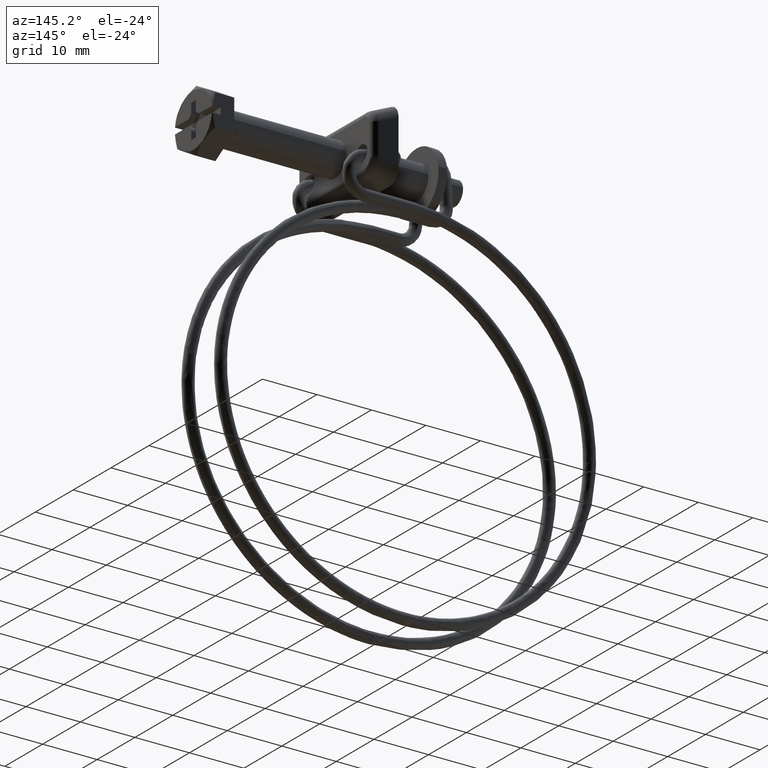
[diagram: clean part render]
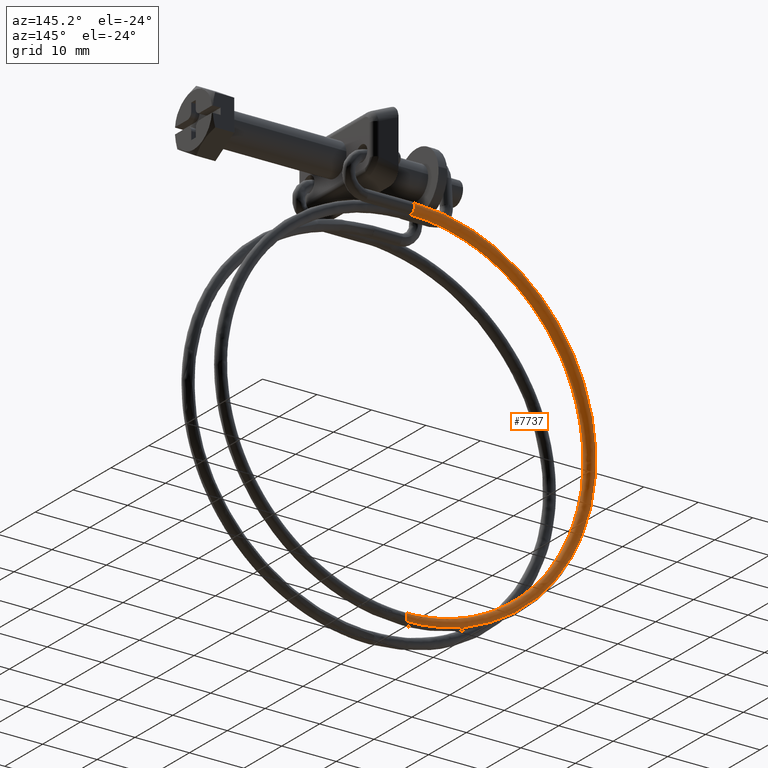
[diagram: same view with one face highlighted and labeled with its STEP entity id]
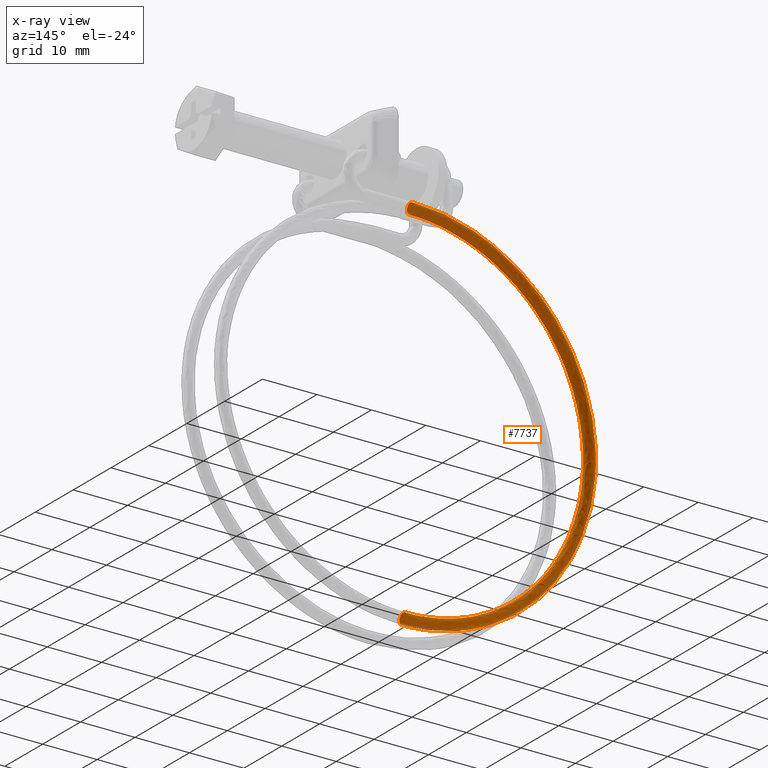
[diagram: x-ray of the same camera — body ghosted, the highlighted face saturated]
A machine part, auxiliary view. The second image highlights one B-rep face of the part: STEP entity #7737.
The next image is the same camera in x-ray: the body ghosted, the highlighted face saturated — about 0% of this face is hidden behind the body in this view.
In plain terms, the highlighted face is a freeform B-spline surface patch.
Its self-contained STEP definition (entity closure, byte-faithful):
#5726=CARTESIAN_POINT('',(-31.500000000001201,6.015277242104361,-6.894924390057616));
#5727=VERTEX_POINT('',#5726);
#5728=CARTESIAN_POINT('',(-31.500000000001201,6.369947953116897,-6.851799381403090));
#5729=VERTEX_POINT('',#5728);
#5730=CARTESIAN_POINT('',(-31.500000000001201,6.015277242104361,-6.894924390057616));
#5731=CARTESIAN_POINT('',(-31.500000000001201,6.129718348853620,-6.859667873983903));
#5732=CARTESIAN_POINT('',(-31.500000000001201,6.250341623666516,-6.844467170618180));
#5733=CARTESIAN_POINT('',(-31.500000000001201,6.369947953116897,-6.851799381403090));
#5734=B_SPLINE_CURVE_WITH_KNOTS('',3,(#5730,#5731,#5732,#5733),.UNSPECIFIED.,.F.,.U.,(4,4),(0.942811831421890,1.0),.UNSPECIFIED.);
#5735=EDGE_CURVE('',#5727,#5729,#5734,.T.);
#5788=CARTESIAN_POINT('',(-31.499999999456119,5.310041442645721,-7.851106266909685));
#5789=VERTEX_POINT('',#5788);
#5795=CARTESIAN_POINT('',(-31.500000000001201,6.250055857790140,-8.848202618596938));
#5796=VERTEX_POINT('',#5795);
#5797=CARTESIAN_POINT('',(-31.500000000001201,6.250055857790140,-8.848202618596938));
#5798=CARTESIAN_POINT('',(-31.499999999925350,5.988721868823734,-8.832508798743652));
#5799=CARTESIAN_POINT('',(-31.499999999820581,5.735455604355250,-8.709332346802100));
#5800=CARTESIAN_POINT('',(-31.499999999620510,5.401575395648069,-8.332804447886925));
#5801=CARTESIAN_POINT('',(-31.499999999526171,5.310880602710983,-8.092378664581801));
#5802=CARTESIAN_POINT('',(-31.499999999456119,5.310041442645721,-7.851106266909685));
#5803=B_SPLINE_CURVE_WITH_KNOTS('',3,(#5797,#5798,#5799,#5800,#5801,#5802),.UNSPECIFIED.,.F.,.U.,(4,2,4),(0.499999999999999,0.624999999999999,0.740274301614952),.UNSPECIFIED.);
#5804=EDGE_CURVE('',#5796,#5789,#5803,.T.);
#5806=CARTESIAN_POINT('',(-31.500000000001201,7.078674721900081,-7.210393451102995));
#5807=VERTEX_POINT('',#5806);
#5808=CARTESIAN_POINT('',(-31.500000000001201,7.078674721900081,-7.210393451102995));
#5809=CARTESIAN_POINT('',(-31.500000000001190,7.239101908064407,-7.403726215758000));
#5810=CARTESIAN_POINT('',(-31.500000000001201,7.323269578552670,-7.659072126360226));
#5811=CARTESIAN_POINT('',(-31.500000000001201,7.292509685471205,-8.171275620312171));
#5812=CARTESIAN_POINT('',(-31.500000000001201,7.169333207666697,-8.424534404153853));
#5813=CARTESIAN_POINT('',(-31.500000000001211,6.777564356626699,-8.771914376464917));
#5814=CARTESIAN_POINT('',(-31.500000000001201,6.511384430438944,-8.863896457176189));
#5815=CARTESIAN_POINT('',(-31.500000000001201,6.250055857790145,-8.848202618596938));
#5816=B_SPLINE_CURVE_WITH_KNOTS('',3,(#5808,#5809,#5810,#5811,#5812,#5813,#5814,#5815),.UNSPECIFIED.,.F.,.U.,(4,2,2,4),(0.130000243199439,0.250000000000000,0.374999999999999,0.499999999999999),.UNSPECIFIED.);
#5817=EDGE_CURVE('',#5807,#5796,#5816,.T.);
#5849=CARTESIAN_POINT('',(-31.499999999456119,5.310041442645721,-7.851106266909685));
#5850=CARTESIAN_POINT('',(-31.499999999463611,5.309969635276471,-7.830743751985228));
#5851=CARTESIAN_POINT('',(-31.499999999471289,5.310537401714973,-7.810375061139963));
#5852=CARTESIAN_POINT('',(-31.499999999579899,5.327431599549398,-7.528621678975285));
#5853=CARTESIAN_POINT('',(-31.499999999706979,5.450583846629549,-7.275255265982112));
#5854=CARTESIAN_POINT('',(-31.499999999888239,5.752699963185735,-7.007185871823710));
#5855=CARTESIAN_POINT('',(-31.499999999948741,5.879642676144169,-6.936955408940240));
#5856=CARTESIAN_POINT('',(-31.500000000001201,6.015277242104361,-6.894924390057616));
#5857=B_SPLINE_CURVE_WITH_KNOTS('',3,(#5849,#5850,#5851,#5852,#5853,#5854,#5855,#5856),.UNSPECIFIED.,.F.,.U.,(4,2,2,4),(0.740274301614952,0.749999999999999,0.874999999999999,0.942811831421890),.UNSPECIFIED.);
#5858=EDGE_CURVE('',#5789,#5727,#5857,.T.);
#6677=CARTESIAN_POINT('',(-31.500034371880741,4.300000213744417,-75.850000999962504));
#6678=VERTEX_POINT('',#6677);
#6694=CARTESIAN_POINT('',(-31.499999999998799,5.028950504939290,-75.534537187868480));
#6695=VERTEX_POINT('',#6694);
#6705=CARTESIAN_POINT('',(-31.499999999998799,4.300002000003272,-73.850001000000091));
#6706=VERTEX_POINT('',#6705);
#6707=CARTESIAN_POINT('',(-31.499999999998799,5.028950504939290,-75.534537187868480));
#6708=CARTESIAN_POINT('',(-31.499999999998799,5.200678716960485,-75.351169085010667));
#6709=CARTESIAN_POINT('',(-31.499999999998799,5.300002000003270,-75.101327902931871));
#6710=CARTESIAN_POINT('',(-31.499999999998799,5.300002000003270,-74.588201612201004));
#6711=CARTESIAN_POINT('',(-31.499999999998799,5.192228903613090,-74.328014341236795));
#6712=CARTESIAN_POINT('',(-31.499999999998799,4.821988658766550,-73.957774096390295));
#6713=CARTESIAN_POINT('',(-31.499999999998799,4.561801387802420,-73.850001000000091));
#6714=CARTESIAN_POINT('',(-31.499999999998799,4.300002000003272,-73.850001000000091));
#6715=B_SPLINE_CURVE_WITH_KNOTS('',3,(#6707,#6708,#6709,#6710,#6711,#6712,#6713,#6714),.UNSPECIFIED.,.F.,.U.,(4,2,2,4),(0.130000243199279,0.250000000000000,0.375000000000000,0.500000000000000),.UNSPECIFIED.);
#6716=EDGE_CURVE('',#6695,#6706,#6715,.T.);
#6718=CARTESIAN_POINT('',(-31.499999999848448,3.364945210156193,-75.203131635907283));
#6719=VERTEX_POINT('',#6718);
#6720=CARTESIAN_POINT('',(-31.499999999998799,4.300002000003272,-73.850001000000091));
#6721=CARTESIAN_POINT('',(-31.499999999985199,4.038161661962944,-73.850016503426275));
#6722=CARTESIAN_POINT('',(-31.499999999963570,3.777909289250105,-73.957814246805754));
#6723=CARTESIAN_POINT('',(-31.499999999916469,3.407527296422756,-74.328108156277750));
#6724=CARTESIAN_POINT('',(-31.499999999891301,3.299678426660810,-74.588324114420402));
#6725=CARTESIAN_POINT('',(-31.499999999862549,3.299591888975770,-74.970530271639589));
#6726=CARTESIAN_POINT('',(-31.499999999854701,3.322352722699565,-75.090572399678010));
#6727=CARTESIAN_POINT('',(-31.499999999848448,3.364945210156193,-75.203131635907283));
#6728=B_SPLINE_CURVE_WITH_KNOTS('',3,(#6720,#6721,#6722,#6723,#6724,#6725,#6726,#6727),.UNSPECIFIED.,.F.,.U.,(4,2,2,4),(0.500000000000000,0.625000000000000,0.750000000000000,0.807474354682750),.UNSPECIFIED.);
#6729=EDGE_CURVE('',#6706,#6719,#6728,.T.);
#6784=CARTESIAN_POINT('',(-31.499999999848448,3.364945210156193,-75.203131635907283));
#6785=CARTESIAN_POINT('',(-31.500003520484690,3.415054684177588,-75.335349654652276));
#6786=CARTESIAN_POINT('',(-31.500007543783731,3.492538758042029,-75.457238662657119));
#6787=CARTESIAN_POINT('',(-31.500019539731611,3.777819043397238,-75.742301835901955));
#6788=CARTESIAN_POINT('',(-31.500027863248310,4.038115470519495,-75.850033442891345));
#6789=CARTESIAN_POINT('',(-31.500034371880741,4.300000213744417,-75.850000999962504));
#6790=B_SPLINE_CURVE_WITH_KNOTS('',3,(#6784,#6785,#6786,#6787,#6788,#6789),.UNSPECIFIED.,.F.,.U.,(4,2,4),(0.807474354682751,0.875000000000000,1.0),.UNSPECIFIED.);
#6791=EDGE_CURVE('',#6719,#6678,#6790,.T.);
#7397=CARTESIAN_POINT('',(-31.500000000001201,7.078674234202620,-7.210392863373689));
#7398=CARTESIAN_POINT('',(-31.500000000001201,7.239101566904580,-7.403725180756085));
#7399=CARTESIAN_POINT('',(-31.500000000001201,7.323269609086691,-7.659071617920402));
#7400=CARTESIAN_POINT('',(-31.500000000001201,7.292509685471449,-8.171275620312040));
#7401=CARTESIAN_POINT('',(-31.500000000001201,7.169333207666990,-8.424534404153761));
#7402=CARTESIAN_POINT('',(-31.500000000001201,6.777564356627050,-8.771914376464881));
#7403=CARTESIAN_POINT('',(-31.500000000001201,6.511384430439320,-8.863896457176210));
#7404=CARTESIAN_POINT('',(-31.500000000001201,5.988727285141720,-8.832508780017820));
#7405=CARTESIAN_POINT('',(-31.500000000001201,5.735468501300010,-8.709332302213342));
#7406=CARTESIAN_POINT('',(-31.500000000001201,5.388088528988880,-8.317563451173401));
#7407=CARTESIAN_POINT('',(-31.500000000001201,5.296106448277560,-8.051383524985660));
#7408=CARTESIAN_POINT('',(-31.500000000001201,5.327494125435960,-7.528726379688069));
#7409=CARTESIAN_POINT('',(-31.500000000001201,5.450670603240420,-7.275467595846370));
#7410=CARTESIAN_POINT('',(-31.500000000001201,5.842439454280361,-6.928087623535240));
#7411=CARTESIAN_POINT('',(-31.500000000001201,6.108619380468101,-6.836105542823920));
#7412=CARTESIAN_POINT('',(-31.500000000001201,6.369947953116901,-6.851799381403114));
#7413=CARTESIAN_POINT('',(-35.973005246352727,7.078816173189922,-7.210426571157434));
#7414=CARTESIAN_POINT('',(-35.948321798327193,7.239243123532276,-7.403758610467009));
#7415=CARTESIAN_POINT('',(-35.915219101427638,7.323410648173153,-7.659104675804486));
#7416=CARTESIAN_POINT('',(-35.848033802962199,7.292649661923901,-8.171307926371231));
#7417=CARTESIAN_POINT('',(-35.814390001036557,7.169472645567200,-8.424566335172269));
#7418=CARTESIAN_POINT('',(-35.767367588014601,6.777703034603160,-8.771945785012161));
#7419=CARTESIAN_POINT('',(-35.754278533088112,6.511522895371450,-8.863927720642410));
#7420=CARTESIAN_POINT('',(-35.756335225868547,5.988865783593480,-8.832540066233690));
#7421=CARTESIAN_POINT('',(-35.771468308796543,5.735607245886210,-8.709363756234080));
#7422=CARTESIAN_POINT('',(-35.821399324642599,5.388228079441590,-8.317595460252651));
#7423=CARTESIAN_POINT('',(-35.855889790695102,5.296246549870240,-8.051415918777339));
#7424=CARTESIAN_POINT('',(-35.924446217700201,5.327635309353771,-7.528759541106350));
#7425=CARTESIAN_POINT('',(-35.958090019622901,5.450812311994089,-7.275501135425160));
#7426=CARTESIAN_POINT('',(-36.005112432626149,5.842581889729850,-6.928121693215950));
#7427=CARTESIAN_POINT('',(-36.018201487550087,6.108762016785970,-6.836139760379470));
#7428=CARTESIAN_POINT('',(-36.017173141154352,6.370090573671085,-6.851833587355236));
#7429=CARTESIAN_POINT('',(-40.442629881486248,7.051994873993948,-8.099707035284277));
#7430=CARTESIAN_POINT('',(-40.393282102555268,7.212569444127148,-8.288131438185035));
#7431=CARTESIAN_POINT('',(-40.327102346478888,7.296934944791059,-8.536895925974916));
#7432=CARTESIAN_POINT('',(-40.192783784050448,7.266575783289500,-9.035741191028851));
#7433=CARTESIAN_POINT('',(-40.125522237029600,7.143599991665441,-9.282310435302879));
#7434=CARTESIAN_POINT('',(-40.031513829494003,6.752111630586560,-9.620340742141810));
#7435=CARTESIAN_POINT('',(-40.005345857005899,6.486009780965270,-9.709720270646319));
#7436=CARTESIAN_POINT('',(-40.009457649670949,5.963340367443661,-9.678741534427839));
#7437=CARTESIAN_POINT('',(-40.039712095104392,5.709991314350030,-9.558574031588210));
#7438=CARTESIAN_POINT('',(-40.139535455591499,5.362313502185710,-9.176733175806190));
#7439=CARTESIAN_POINT('',(-40.208489675119353,5.270125684917701,-8.917411135006422));
#7440=CARTESIAN_POINT('',(-40.345549432699350,5.301104421143781,-8.408385354339140));
#7441=CARTESIAN_POINT('',(-40.412810979720248,5.424080212762131,-8.161816110065109));
#7442=CARTESIAN_POINT('',(-40.506819387271001,5.815568573842920,-7.823785803256600));
#7443=CARTESIAN_POINT('',(-40.532987359759147,6.081670423462300,-7.734406274721670));
#7444=CARTESIAN_POINT('',(-40.530931463434221,6.343005130225010,-7.749895642830910));
#7445=CARTESIAN_POINT('',(-48.705730897072797,6.949307687598625,-11.522613299489890));
#7446=CARTESIAN_POINT('',(-48.610793773250137,7.110448805516025,-11.692152776036110));
#7447=CARTESIAN_POINT('',(-48.483474655121590,7.195574097086788,-11.915590899651781));
#7448=CARTESIAN_POINT('',(-48.225067523692907,7.166757008712080,-12.363033726408361));
#7449=CARTESIAN_POINT('',(-48.095667215199001,7.044553427743220,-12.583862615367220));
#7450=CARTESIAN_POINT('',(-47.914810284613402,6.654144350390000,-12.885916797408481));
#7451=CARTESIAN_POINT('',(-47.864467349266498,6.388342927798450,-12.965282091345159));
#7452=CARTESIAN_POINT('',(-47.872377771540101,5.865626307949780,-12.935876899118460));
#7453=CARTESIAN_POINT('',(-47.930582418091802,5.611929912202299,-12.827287485201801));
#7454=CARTESIAN_POINT('',(-48.122626375141799,5.263106056491050,-12.483648081547100));
#7455=CARTESIAN_POINT('',(-48.255283111049501,5.170126595481261,-12.250714165742259));
#7456=CARTESIAN_POINT('',(-48.518963857405303,5.199531787700350,-11.794139852725340));
#7457=CARTESIAN_POINT('',(-48.648364165899302,5.321735368674919,-11.573310963766501));
#7458=CARTESIAN_POINT('',(-48.829221096469603,5.712144446026230,-11.271256781694801));
#7459=CARTESIAN_POINT('',(-48.879564031816500,5.977945868619690,-11.191891487788540));
#7460=CARTESIAN_POINT('',(-48.875608820672099,6.239304178542120,-11.206594083901891));
#7461=CARTESIAN_POINT('',(-52.495228591303217,6.873340451811479,-14.054854530071310));
#7462=CARTESIAN_POINT('',(-52.379388699860030,7.034900643055207,-14.210424895502500));
#7463=CARTESIAN_POINT('',(-52.224037113105332,7.120587949194864,-14.415129199989449));
#7464=CARTESIAN_POINT('',(-51.908735228554612,7.092911526683260,-14.824549830738620));
#7465=CARTESIAN_POINT('',(-51.750844225705087,6.971279147107130,-15.026338672842650));
#7466=CARTESIAN_POINT('',(-51.530167146343800,6.581668411992510,-15.301781446641851));
#7467=CARTESIAN_POINT('',(-51.468739962449099,6.316089214183140,-15.373739247817401));
#7468=CARTESIAN_POINT('',(-51.478392060790299,5.793337675994160,-15.345498000349000));
#7469=CARTESIAN_POINT('',(-51.549411907077904,5.539384352141160,-15.245472856607300));
#7470=CARTESIAN_POINT('',(-51.783739114828087,5.189712772203950,-14.930090927613540));
#7471=CARTESIAN_POINT('',(-51.945603528546002,5.096147735212950,-14.716676211555100));
#7472=CARTESIAN_POINT('',(-52.267340145434403,5.124388982675680,-14.298900057729400));
#7473=CARTESIAN_POINT('',(-52.425231148314403,5.246021362248000,-14.097111215610200));
#7474=CARTESIAN_POINT('',(-52.645908227645300,5.635632097366431,-13.821668441826199));
#7475=CARTESIAN_POINT('',(-52.707335411570398,5.901211295173890,-13.749710640635399));
#7476=CARTESIAN_POINT('',(-52.702509362399802,6.162587064268379,-13.763831264369610));
#7477=CARTESIAN_POINT('',(-58.819111408478960,6.683614215919462,-20.379062487825969));
#7478=CARTESIAN_POINT('',(-58.668397587253779,6.846220678830965,-20.499757130468101));
#7479=CARTESIAN_POINT('',(-58.466276962209832,6.933311128238903,-20.657689991987191));
#7480=CARTESIAN_POINT('',(-58.056052545948504,6.908482528048340,-20.972183210593251));
#7481=CARTESIAN_POINT('',(-57.850628006234103,6.788276227874250,-21.126436071969749));
#7482=CARTESIAN_POINT('',(-57.563515462691200,6.400658659124670,-21.335439965797949));
#7483=CARTESIAN_POINT('',(-57.483595449798003,6.135634274696789,-21.388903987230648));
#7484=CARTESIAN_POINT('',(-57.496153339925598,5.612795558278510,-21.363568680921350));
#7485=CARTESIAN_POINT('',(-57.588553913501201,5.358200779638050,-21.284925363732651));
#7486=CARTESIAN_POINT('',(-57.893425995568002,5.006412744688739,-21.040091936121300));
#7487=CARTESIAN_POINT('',(-58.104020152777203,4.911385740251650,-20.875409468955450));
#7488=CARTESIAN_POINT('',(-58.522616495901097,4.936721046566650,-20.554498021398249));
#7489=CARTESIAN_POINT('',(-58.728041035585100,5.056927346744540,-20.400245160036999));
#7490=CARTESIAN_POINT('',(-59.015153579158401,5.444544915490320,-20.191241266193551));
#7491=CARTESIAN_POINT('',(-59.095073592021201,5.709569299920100,-20.137777244776100));
#7492=CARTESIAN_POINT('',(-59.088794646957354,5.970988658129240,-20.150444897930750));
#7493=CARTESIAN_POINT('',(-61.351014895100157,6.569929865700559,-24.168540884870570));
#7494=CARTESIAN_POINT('',(-61.186343254168357,6.733163105050684,-24.268342979222648));
#7495=CARTESIAN_POINT('',(-60.965503952741109,6.821094117354305,-24.398257077193211));
#7496=CARTESIAN_POINT('',(-60.517288074277303,6.797971525261590,-24.655883358456801));
#7497=CARTESIAN_POINT('',(-60.292838878030402,6.678619528030301,-24.781659454522948));
#7498=CARTESIAN_POINT('',(-59.979136436591503,6.292195979689670,-24.950862667596400));
#7499=CARTESIAN_POINT('',(-59.891814918539687,6.027503960140490,-24.993247859532001));
#7500=CARTESIAN_POINT('',(-59.905535812582897,5.504613018982990,-24.969653377797101));
#7501=CARTESIAN_POINT('',(-60.006493733661401,5.249633972318660,-24.903818995010202));
#7502=CARTESIAN_POINT('',(-60.339600449555498,4.896578060032070,-24.701248145869450));
#7503=CARTESIAN_POINT('',(-60.569698028889803,4.800675253663500,-24.565759076927950));
#7504=CARTESIAN_POINT('',(-61.027061170179401,4.824269735392660,-24.302875116454850));
#7505=CARTESIAN_POINT('',(-61.251510366426203,4.943621732622050,-24.177099020396302));
#7506=CARTESIAN_POINT('',(-61.565212807895598,5.330045280964580,-24.007895807315300));
#7507=CARTESIAN_POINT('',(-61.652534325977797,5.594737300509960,-23.965510615379699));
#7508=CARTESIAN_POINT('',(-61.645673878956252,5.856182771088704,-23.977307856247130));
#7509=CARTESIAN_POINT('',(-64.773315190730528,6.322053691483692,-32.431080148747832));
#7510=CARTESIAN_POINT('',(-64.589779625259595,6.486653239180921,-32.485338630907762));
#7511=CARTESIAN_POINT('',(-64.343642124934874,6.576416592366566,-32.554174698441599));
#7512=CARTESIAN_POINT('',(-63.844080972463900,6.557012922918890,-32.687836889509057));
#7513=CARTESIAN_POINT('',(-63.593920046599003,6.439523218485470,-32.751536558254053));
#7514=CARTESIAN_POINT('',(-63.244281489101013,6.055702512143471,-32.833978369947651));
#7515=CARTESIAN_POINT('',(-63.146956873232412,5.791735013944940,-32.852212850001862));
#7516=CARTESIAN_POINT('',(-63.162249561335798,5.268730228219270,-32.832413187307750));
#7517=CARTESIAN_POINT('',(-63.274772695538992,5.012913516671880,-32.794500967558101));
#7518=CARTESIAN_POINT('',(-63.646038379946503,4.657093761854871,-32.684058204352802));
#7519=CARTESIAN_POINT('',(-63.902494738221797,4.559281797105490,-32.612207748947199));
#7520=CARTESIAN_POINT('',(-64.412251016253407,4.579081459805300,-32.475817758062000));
#7521=CARTESIAN_POINT('',(-64.662411942118396,4.696571164240621,-32.412118089309452));
#7522=CARTESIAN_POINT('',(-65.012050499585797,5.080391870580720,-32.329676277623449));
#7523=CARTESIAN_POINT('',(-65.109375115424115,5.344359368783050,-32.311441797569252));
#7524=CARTESIAN_POINT('',(-65.101728771372407,5.605861761645885,-32.321341628916301));
#7525=CARTESIAN_POINT('',(-65.662370306520003,6.187959255794595,-36.900894738474449));
#7526=CARTESIAN_POINT('',(-65.473935585598312,6.353297804149396,-36.930519864944479));
#7527=CARTESIAN_POINT('',(-65.221227882549599,6.444052222880281,-36.966320413828583));
#7528=CARTESIAN_POINT('',(-64.708331833770998,6.426660022002380,-37.032933651622002));
#7529=CARTESIAN_POINT('',(-64.451493306990699,6.310177583321621,-37.063057794829753));
#7530=CARTESIAN_POINT('',(-64.092521770181008,5.927764686545860,-37.098572620300452));
#7531=CARTESIAN_POINT('',(-63.992599246824803,5.664189063101530,-37.103744608226513));
#7532=CARTESIAN_POINT('',(-64.008300146042899,5.141122701811311,-37.085997464496351));
#7533=CARTESIAN_POINT('',(-64.123826885106297,4.884852919109321,-37.063187616756650));
#7534=CARTESIAN_POINT('',(-64.505002846531596,4.527538273723740,-37.002574539861563));
#7535=CARTESIAN_POINT('',(-64.768304851087990,4.428693694845215,-36.965144555930500));
#7536=CARTESIAN_POINT('',(-65.291668166168208,4.446440838598180,-36.897171864304553));
#7537=CARTESIAN_POINT('',(-65.548506692948493,4.562923277282740,-36.867047721096803));
#7538=CARTESIAN_POINT('',(-65.907478229758183,4.945336174058490,-36.831532895610849));
#7539=CARTESIAN_POINT('',(-66.007400753114396,5.208911797499020,-36.826360907684801));
#7540=CARTESIAN_POINT('',(-65.999550303505345,5.470444978144135,-36.835234479565102));
#7541=CARTESIAN_POINT('',(-65.662370306580911,5.919665025844651,-45.844035870206532));
#7542=CARTESIAN_POINT('',(-65.473935585659206,6.086482141674736,-45.824375413513302));
#7543=CARTESIAN_POINT('',(-65.221227882610492,6.179219450759152,-45.794079616381467));
#7544=CARTESIAN_POINT('',(-64.708331833831807,6.165851728021820,-45.726543580893413));
#7545=CARTESIAN_POINT('',(-64.451493307051493,6.051384592507930,-45.689490950563197));
#7546=CARTESIAN_POINT('',(-64.092521770241902,5.671788393397220,-45.631115852557102));
#7547=CARTESIAN_POINT('',(-63.992599246885703,5.408996819689680,-45.610152848952197));
#7548=CARTESIAN_POINT('',(-64.008300146103707,4.885807260084010,-45.596512315523903));
#7549=CARTESIAN_POINT('',(-64.123826885167105,4.628630987980160,-45.603918781849302));
#7550=CARTESIAN_POINT('',(-64.505002846592404,4.268325416208070,-45.643003252550997));
#7551=CARTESIAN_POINT('',(-64.768304851148898,4.167414817985089,-45.674440581258501));
#7552=CARTESIAN_POINT('',(-65.291668166229115,4.181055351390530,-45.743354903185093));
#7553=CARTESIAN_POINT('',(-65.548506693009401,4.295522486900615,-45.780407533515302));
#7554=CARTESIAN_POINT('',(-65.907478229819105,4.675118686011330,-45.838782631536603));
#7555=CARTESIAN_POINT('',(-66.007400753175290,4.937910259722670,-45.859745635141500));
#7556=CARTESIAN_POINT('',(-65.999550303566252,5.199505039525509,-45.866565901840453));
#7557=CARTESIAN_POINT('',(-64.773315190714143,5.785570590153837,-50.313850459972343));
#7558=CARTESIAN_POINT('',(-64.589779625218597,5.953126706642338,-50.269556647580657));
#7559=CARTESIAN_POINT('',(-64.343642124922368,6.046855081271930,-50.206225331819972));
#7560=CARTESIAN_POINT('',(-63.844080972466507,6.035498827100650,-50.071640343057403));
#7561=CARTESIAN_POINT('',(-63.593920046571213,5.922038957343240,-50.001012187182099));
#7562=CARTESIAN_POINT('',(-63.244281489103798,5.543850567793070,-49.895710102960400));
#7563=CARTESIAN_POINT('',(-63.146956873235197,5.281450868843540,-49.861684607219694));
#7564=CARTESIAN_POINT('',(-63.162249561338612,4.758199733673310,-49.850096592770598));
#7565=CARTESIAN_POINT('',(-63.274772695541799,4.500570390414860,-49.872605431098499));
#7566=CARTESIAN_POINT('',(-63.646038379918693,4.138769928076100,-49.961519588125903));
#7567=CARTESIAN_POINT('',(-63.902494738224313,4.036826715723970,-50.027377388277699));
#7568=CARTESIAN_POINT('',(-64.412251016210107,4.048414730184450,-50.164709009463998));
#7569=CARTESIAN_POINT('',(-64.662411942105393,4.161874599938065,-50.235337165354402));
#7570=CARTESIAN_POINT('',(-65.012050499572794,4.540062989488229,-50.340639249576100));
#7571=CARTESIAN_POINT('',(-65.109375115410899,4.802462688439670,-50.374664745301700));
#7572=CARTESIAN_POINT('',(-65.101728771374468,5.064088256023831,-50.380458752526252));
#7573=CARTESIAN_POINT('',(-61.351014895114623,5.537694415940402,-58.576389723770880));
#7574=CARTESIAN_POINT('',(-61.186343254207458,5.706616840774321,-58.486552299204227));
#7575=CARTESIAN_POINT('',(-60.965503952751803,5.802177556286074,-58.362142952965129));
#7576=CARTESIAN_POINT('',(-60.517288074272912,5.794540224767260,-58.103593874007302));
#7577=CARTESIAN_POINT('',(-60.292838878056401,5.682942647800100,-57.970889290826499));
#7578=CARTESIAN_POINT('',(-59.979136436586899,5.307357100259950,-57.778825805210403));
#7579=CARTESIAN_POINT('',(-59.891814918535097,5.045681922653470,-57.720649597603597));
#7580=CARTESIAN_POINT('',(-59.905535812578201,4.522316942915060,-57.712856402164803));
#7581=CARTESIAN_POINT('',(-60.006493733656797,4.263849934773559,-57.763287403545000));
#7582=CARTESIAN_POINT('',(-60.339600449581503,3.899285629900585,-57.944329646476803));
#7583=CARTESIAN_POINT('',(-60.569698028885398,3.795433259167660,-58.073826060224903));
#7584=CARTESIAN_POINT('',(-61.027061170220897,3.803226454595015,-58.337651650998197));
#7585=CARTESIAN_POINT('',(-61.251510366437387,3.914824031565990,-58.470356234163802));
#7586=CARTESIAN_POINT('',(-61.565212807906903,4.290409579106130,-58.662419719779912));
#7587=CARTESIAN_POINT('',(-61.652534325989102,4.552084756710720,-58.720595927401902));
#7588=CARTESIAN_POINT('',(-61.645673878952287,4.813767246580874,-58.724492525121299));
#7589=CARTESIAN_POINT('',(-58.819111408463492,5.424010065719992,-62.365868120890909));
#7590=CARTESIAN_POINT('',(-58.668397587245188,5.593559266992816,-62.255138148018737));
#7591=CARTESIAN_POINT('',(-58.466276962201121,5.689960545403700,-62.102710038252141));
#7592=CARTESIAN_POINT('',(-58.056052545925091,5.684029221979040,-61.787294021965899));
#7593=CARTESIAN_POINT('',(-57.850628006210897,5.573285947956579,-61.626112673451587));
#7594=CARTESIAN_POINT('',(-57.563515462653001,5.198894420817791,-61.394248507087802));
#7595=CARTESIAN_POINT('',(-57.483595449790293,4.937551608091910,-61.324993469991398));
#7596=CARTESIAN_POINT('',(-57.496153339933102,4.414134403616185,-61.318941099142300));
#7597=CARTESIAN_POINT('',(-57.588553913478300,4.155283127452710,-61.382181034901613));
#7598=CARTESIAN_POINT('',(-57.893425995560001,3.789450945242440,-61.605485856350199));
#7599=CARTESIAN_POINT('',(-58.104020152769003,3.684722772578025,-61.764175668246899));
#7600=CARTESIAN_POINT('',(-58.522616495907798,3.690775143419510,-62.086028746120398));
#7601=CARTESIAN_POINT('',(-58.728041035591602,3.801518417440070,-62.247210094634703));
#7602=CARTESIAN_POINT('',(-59.015153579149498,4.175909944576955,-62.479074260968098));
#7603=CARTESIAN_POINT('',(-59.095073592012199,4.437252757302839,-62.548329298094899));
#7604=CARTESIAN_POINT('',(-59.088794646948401,4.698961359540699,-62.551355483504238));
#7605=CARTESIAN_POINT('',(-52.495228591315367,5.234283829827603,-68.690076078572261));
#7606=CARTESIAN_POINT('',(-52.379388699865331,5.404879302769316,-68.544470382924757));
#7607=CARTESIAN_POINT('',(-52.224037113110832,5.502683724441438,-68.345270830189961));
#7608=CARTESIAN_POINT('',(-51.908735228574599,5.499600223337811,-67.934927401731500));
#7609=CARTESIAN_POINT('',(-51.750844225724897,5.390283028721180,-67.726210072520502));
#7610=CARTESIAN_POINT('',(-51.530167146378602,5.017884667951230,-67.427907026186091));
#7611=CARTESIAN_POINT('',(-51.468739962453391,4.757096668610629,-67.340158209316499));
#7612=CARTESIAN_POINT('',(-51.478392060779498,4.233592285901811,-67.337011779626508));
#7613=CARTESIAN_POINT('',(-51.549411907097507,3.974099554947074,-67.421633541969086));
#7614=CARTESIAN_POINT('',(-51.783739114832798,3.606150917728525,-67.715486864738708));
#7615=CARTESIAN_POINT('',(-51.945603528550798,3.499960777618035,-67.922908925619097));
#7616=CARTESIAN_POINT('',(-52.267340145424399,3.503107207315615,-68.341626709729908));
#7617=CARTESIAN_POINT('',(-52.425231148304597,3.612424401934145,-68.550344038940906));
#7618=CARTESIAN_POINT('',(-52.645908227650906,3.984822762705996,-68.848647085305686));
#7619=CARTESIAN_POINT('',(-52.707335411576103,4.245610762046600,-68.936395902144895));
#7620=CARTESIAN_POINT('',(-52.702509362405451,4.507362953401010,-68.937969117005096));
#7621=CARTESIAN_POINT('',(-48.705730897092522,5.158316594041912,-71.222317309206503));
#7622=CARTESIAN_POINT('',(-48.610793773263147,5.329331140311499,-71.062742502448316));
#7623=CARTESIAN_POINT('',(-48.483474655134579,5.427697576550784,-70.844809130556854));
#7624=CARTESIAN_POINT('',(-48.225067523705903,5.425754741310260,-70.396443506105598));
#7625=CARTESIAN_POINT('',(-48.095667215211897,5.317008748090180,-70.168686130024298));
#7626=CARTESIAN_POINT('',(-47.914810284626398,4.945408729553120,-69.843771675447698));
#7627=CARTESIAN_POINT('',(-47.864467349279487,4.684842954992811,-69.748615365801697));
#7628=CARTESIAN_POINT('',(-47.872377771553097,4.161303653943675,-69.746632880870010));
#7629=CARTESIAN_POINT('',(-47.930582418119997,3.901553994886265,-69.839818913402809));
#7630=CARTESIAN_POINT('',(-48.122626375170000,3.532757633438895,-70.161929710864101));
#7631=CARTESIAN_POINT('',(-48.255283111062496,3.425981917345285,-70.388870971475697));
#7632=CARTESIAN_POINT('',(-48.518963857418299,3.427964402283650,-70.846386914793399));
#7633=CARTESIAN_POINT('',(-48.648364165912312,3.536710395505630,-71.074144290874600));
#7634=CARTESIAN_POINT('',(-48.829221096497797,3.908310414040785,-71.399058745451299));
#7635=CARTESIAN_POINT('',(-48.879564031844701,4.168876188602050,-71.494215055036406));
#7636=CARTESIAN_POINT('',(-48.875608820700300,4.430645839127570,-71.495206297502250));
#7637=CARTESIAN_POINT('',(-40.442629881462061,5.055629407644091,-74.645223573378388));
#7638=CARTESIAN_POINT('',(-40.393282102537817,5.227210501693670,-74.466763840243260));
#7639=CARTESIAN_POINT('',(-40.327102346461402,5.326336728850323,-74.223504104233740));
#7640=CARTESIAN_POINT('',(-40.192783784032997,5.325935966736640,-73.723736041485097));
#7641=CARTESIAN_POINT('',(-40.125522237012099,5.217962184160350,-73.470238310088604));
#7642=CARTESIAN_POINT('',(-40.031513829476552,4.847441449356560,-73.109347730714305));
#7643=CARTESIAN_POINT('',(-40.005345856988399,4.587176101825980,-73.004177186561392));
#7644=CARTESIAN_POINT('',(-40.009457649653498,4.063589594453600,-73.003768245621501));
#7645=CARTESIAN_POINT('',(-40.039712095071749,3.803492592740445,-73.108532367016409));
#7646=CARTESIAN_POINT('',(-40.139535455558850,3.433550187748045,-73.468844616604997));
#7647=CARTESIAN_POINT('',(-40.208489675101852,3.325982827916455,-73.722174002150695));
#7648=CARTESIAN_POINT('',(-40.345549432681899,3.326391768849730,-74.232141413118711));
#7649=CARTESIAN_POINT('',(-40.412810979702748,3.434365551424120,-74.485639144515204));
#7650=CARTESIAN_POINT('',(-40.506819387238352,3.804886286229805,-74.846529723889503));
#7651=CARTESIAN_POINT('',(-40.532987359726448,4.065151633759434,-74.951700268103295));
#7652=CARTESIAN_POINT('',(-40.530931463401522,4.326944887444677,-74.951904738573248));
#7653=CARTESIAN_POINT('',(-35.973005278200759,5.028950991145331,-75.534537766680472));
#7654=CARTESIAN_POINT('',(-35.948321829925767,5.200679317026462,-75.351170124111590));
#7655=CARTESIAN_POINT('',(-35.915219132696052,5.300002995203425,-75.101328441614243));
#7656=CARTESIAN_POINT('',(-35.848033833557601,5.300002980163070,-74.588201641527704));
#7657=CARTESIAN_POINT('',(-35.814390031293300,5.192229876287700,-74.328014367400783));
#7658=CARTESIAN_POINT('',(-35.767367617793752,4.821989621078060,-73.957774111695699));
#7659=CARTESIAN_POINT('',(-35.754278562730399,4.561802347297800,-73.850001007699390));
#7660=CARTESIAN_POINT('',(-35.756335255516902,4.038203572391800,-73.850000992329399));
#7661=CARTESIAN_POINT('',(-35.771468338599448,3.778016304929900,-73.957774081107900));
#7662=CARTESIAN_POINT('',(-35.821399354932147,3.407776071425950,-74.328014315082001));
#7663=CARTESIAN_POINT('',(-35.855889821314612,3.300002982805649,-74.588201582878213));
#7664=CARTESIAN_POINT('',(-35.924446249006913,3.300002998153795,-75.111800358476700));
#7665=CARTESIAN_POINT('',(-35.958090051271142,3.407776102028100,-75.371987632608892));
#7666=CARTESIAN_POINT('',(-36.005112464770697,3.778016357238480,-75.742227888327719));
#7667=CARTESIAN_POINT('',(-36.018201519834101,4.038203631018700,-75.850000992329399));
#7668=CARTESIAN_POINT('',(-36.017173173435133,4.300003018471751,-75.850001000014402));
#7669=CARTESIAN_POINT('',(-31.499999999998799,5.028949982887156,-75.534537745304903));
#7670=CARTESIAN_POINT('',(-31.499999999998799,5.200678314370079,-75.351170097699310));
#7671=CARTESIAN_POINT('',(-31.499999999998799,5.300002000003270,-75.101328412287245));
#7672=CARTESIAN_POINT('',(-31.499999999998799,5.300002000003270,-74.588201612201004));
#7673=CARTESIAN_POINT('',(-31.499999999998799,5.192228903613090,-74.328014341236795));
#7674=CARTESIAN_POINT('',(-31.499999999998799,4.821988658766550,-73.957774096390295));
#7675=CARTESIAN_POINT('',(-31.499999999998799,4.561801387802420,-73.850001000000091));
#7676=CARTESIAN_POINT('',(-31.499999999998799,4.038202612204125,-73.850001000000091));
#7677=CARTESIAN_POINT('',(-31.499999999998799,3.778015341239990,-73.957774096390295));
#7678=CARTESIAN_POINT('',(-31.499999999998799,3.407775096393460,-74.328014341236795));
#7679=CARTESIAN_POINT('',(-31.499999999998799,3.300002000003275,-74.588201612201004));
#7680=CARTESIAN_POINT('',(-31.499999999998799,3.300002000003275,-75.111800387799207));
#7681=CARTESIAN_POINT('',(-31.499999999998799,3.407775096393460,-75.371987658763388));
#7682=CARTESIAN_POINT('',(-31.499999999998799,3.778015341239990,-75.742227903609901));
#7683=CARTESIAN_POINT('',(-31.499999999998799,4.038202612204125,-75.850001000000091));
#7684=CARTESIAN_POINT('',(-31.499999999998799,4.300002000003272,-75.850001000000091));
#7685=B_SPLINE_SURFACE_WITH_KNOTS('',3,3,((#7397,#7413,#7429,#7445,#7461,#7477,#7493,#7509,#7525,#7541,#7557,#7573,#7589,#7605,#7621,#7637,#7653,#7669),(#7398,#7414,#7430,#7446,#7462,#7478,#7494,#7510,#7526,#7542,#7558,#7574,#7590,#7606,#7622,#7638,#7654,#7670),(#7399,#7415,#7431,#7447,#7463,#7479,#7495,#7511,#7527,#7543,#7559,#7575,#7591,#7607,#7623,#7639,#7655,#7671),(#7400,#7416,#7432,#7448,#7464,#7480,#7496,#7512,#7528,#7544,#7560,#7576,#7592,#7608,#7624,#7640,#7656,#7672),(#7401,#7417,#7433,#7449,#7465,#7481,#7497,#7513,#7529,#7545,#7561,#7577,#7593,#7609,#7625,#7641,#7657,#7673),(#7402,#7418,#7434,#7450,#7466,#7482,#7498,#7514,#7530,#7546,#7562,#7578,#7594,#7610,#7626,#7642,#7658,#7674),(#7403,#7419,#7435,#7451,#7467,#7483,#7499,#7515,#7531,#7547,#7563,#7579,#7595,#7611,#7627,#7643,#7659,#7675),(#7404,#7420,#7436,#7452,#7468,#7484,#7500,#7516,#7532,#7548,#7564,#7580,#7596,#7612,#7628,#7644,#7660,#7676),(#7405,#7421,#7437,#7453,#7469,#7485,#7501,#7517,#7533,#7549,#7565,#7581,#7597,#7613,#7629,#7645,#7661,#7677),(#7406,#7422,#7438,#7454,#7470,#7486,#7502,#7518,#7534,#7550,#7566,#7582,#7598,#7614,#7630,#7646,#7662,#7678),(#7407,#7423,#7439,#7455,#7471,#7487,#7503,#7519,#7535,#7551,#7567,#7583,#7599,#7615,#7631,#7647,#7663,#7679),(#7408,#7424,#7440,#7456,#7472,#7488,#7504,#7520,#7536,#7552,#7568,#7584,#7600,#7616,#7632,#7648,#7664,#7680),(#7409,#7425,#7441,#7457,#7473,#7489,#7505,#7521,#7537,#7553,#7569,#7585,#7601,#7617,#7633,#7649,#7665,#7681),(#7410,#7426,#7442,#7458,#7474,#7490,#7506,#7522,#7538,#7554,#7570,#7586,#7602,#7618,#7634,#7650,#7666,#7682),(#7411,#7427,#7443,#7459,#7475,#7491,#7507,#7523,#7539,#7555,#7571,#7587,#7603,#7619,#7635,#7651,#7667,#7683),(#7412,#7428,#7444,#7460,#7476,#7492,#7508,#7524,#7540,#7556,#7572,#7588,#7604,#7620,#7636,#7652,#7668,#7684)),.UNSPECIFIED.,.F.,.F.,.U.,(4,2,2,2,2,2,2,4),(4,2,2,2,2,2,2,2,4),(0.0,0.753982236861548,1.539380400258994,2.324778563656440,3.110176727053887,3.895574890451333,4.680973053848779,5.466371217246224),(0.0,13.552615193200291,27.105230386400589,40.657845579600831,54.210460772801277,67.763075966001523,81.315691159201762,94.868306352402001,108.420921545602200),.UNSPECIFIED.);
#7686=ORIENTED_EDGE('',*,*,#6716,.F.);
#7687=CARTESIAN_POINT('',(-31.500000000001201,7.078674721900081,-7.210393451102995));
#7688=CARTESIAN_POINT('',(-35.973005246352727,7.078816173189922,-7.210426571157433));
#7689=CARTESIAN_POINT('',(-40.442629881486248,7.051994873993948,-8.099707035284277));
#7690=CARTESIAN_POINT('',(-48.705730897072797,6.949307687598625,-11.522613299489890));
#7691=CARTESIAN_POINT('',(-52.495228591303217,6.873340451811479,-14.054854530071310));
#7692=CARTESIAN_POINT('',(-58.819111408478953,6.683614215919462,-20.379062487825969));
#7693=CARTESIAN_POINT('',(-61.351014895100157,6.569929865700559,-24.168540884870570));
#7694=CARTESIAN_POINT('',(-64.773315190730528,6.322053691483693,-32.431080148747832));
#7695=CARTESIAN_POINT('',(-65.662370306520017,6.187959255794595,-36.900894738474442));
#7696=CARTESIAN_POINT('',(-65.662370306580911,5.919665025844651,-45.844035870206532));
#7697=CARTESIAN_POINT('',(-64.773315190714143,5.785570590153837,-50.313850459972343));
#7698=CARTESIAN_POINT('',(-61.351014895114623,5.537694415940402,-58.576389723770887));
#7699=CARTESIAN_POINT('',(-58.819111408463492,5.424010065719992,-62.365868120890909));
#7700=CARTESIAN_POINT('',(-52.495228591315367,5.234283829827603,-68.690076078572261));
#7701=CARTESIAN_POINT('',(-48.705730897092522,5.158316594041912,-71.222317309206503));
#7702=CARTESIAN_POINT('',(-40.442629881462068,5.055629407644091,-74.645223573378388));
#7703=CARTESIAN_POINT('',(-35.973005278200759,5.028950991145331,-75.534537766680472));
#7704=CARTESIAN_POINT('',(-31.499999999998799,5.028950504939290,-75.534537187868480));
#7705=B_SPLINE_CURVE_WITH_KNOTS('',3,(#7687,#7688,#7689,#7690,#7691,#7692,#7693,#7694,#7695,#7696,#7697,#7698,#7699,#7700,#7701,#7702,#7703,#7704),.UNSPECIFIED.,.F.,.U.,(4,2,2,2,2,2,2,2,4),(0.046832184104402,0.072705557828579,0.098578931552755,0.124452305276931,0.150325679001107,0.176199052725283,0.202072426449459,0.227945800173635,0.253819173897811),.UNSPECIFIED.);
#7706=EDGE_CURVE('',#5807,#6695,#7705,.T.);
#7707=ORIENTED_EDGE('',*,*,#7706,.F.);
#7708=ORIENTED_EDGE('',*,*,#5817,.T.);
#7709=ORIENTED_EDGE('',*,*,#5804,.T.);
#7710=ORIENTED_EDGE('',*,*,#5858,.T.);
#7711=ORIENTED_EDGE('',*,*,#5735,.T.);
#7712=CARTESIAN_POINT('',(-31.500000000001201,6.369947953116897,-6.851799381403090));
#7713=CARTESIAN_POINT('',(-36.017173141169252,6.370090573670307,-6.851833587355212));
#7714=CARTESIAN_POINT('',(-40.530931910826439,6.343005106974656,-7.749895642830397));
#7715=CARTESIAN_POINT('',(-48.875610990040073,6.239304065803082,-11.206594083899491));
#7716=CARTESIAN_POINT('',(-52.702512805671333,6.162586885326348,-13.763831264365820));
#7717=CARTESIAN_POINT('',(-59.088801271760062,5.970988313847462,-20.150444897923489));
#7718=CARTESIAN_POINT('',(-61.645682410134476,5.856182327735246,-23.977307856237779));
#7719=CARTESIAN_POINT('',(-65.101741459182790,5.605861102278039,-32.321341628902410));
#7720=CARTESIAN_POINT('',(-65.999565239939443,5.470444201918446,-36.835234479548753));
#7721=CARTESIAN_POINT('',(-65.999569739014092,5.199504029492339,-45.866565901819193));
#7722=CARTESIAN_POINT('',(-65.101750455446023,5.064087129132817,-50.380458752502527));
#7723=CARTESIAN_POINT('',(-61.645699719656001,4.813765903675474,-58.724492525093027));
#7724=CARTESIAN_POINT('',(-59.088822394027623,4.698959917563618,-62.551355483473891));
#7725=CARTESIAN_POINT('',(-52.702540291015850,4.507361346084183,-68.937969116971274));
#7726=CARTESIAN_POINT('',(-48.875641023214257,4.430644165607749,-71.495206297467035));
#7727=CARTESIAN_POINT('',(-40.530965387891243,4.326943124436173,-74.951904738536143));
#7728=CARTESIAN_POINT('',(-36.017207545317049,4.300001232212896,-75.850000999976814));
#7729=CARTESIAN_POINT('',(-31.500034371880741,4.300000213744417,-75.850000999962504));
#7730=B_SPLINE_CURVE_WITH_KNOTS('',3,(#7712,#7713,#7714,#7715,#7716,#7717,#7718,#7719,#7720,#7721,#7722,#7723,#7724,#7725,#7726,#7727,#7728,#7729),.UNSPECIFIED.,.F.,.U.,(4,2,2,2,2,2,2,2,4),(0.046832184104402,0.072705557828579,0.098578931552755,0.124452305276931,0.150325679001107,0.176199052725283,0.202072426449459,0.227945800173635,0.253819173897811),.UNSPECIFIED.);
#7731=EDGE_CURVE('',#5729,#6678,#7730,.T.);
#7732=ORIENTED_EDGE('',*,*,#7731,.T.);
#7733=ORIENTED_EDGE('',*,*,#6791,.F.);
#7734=ORIENTED_EDGE('',*,*,#6729,.F.);
#7735=EDGE_LOOP('',(#7686,#7707,#7708,#7709,#7710,#7711,#7732,#7733,#7734));
#7736=FACE_OUTER_BOUND('',#7735,.T.);
#7737=ADVANCED_FACE('',(#7736),#7685,.T.);